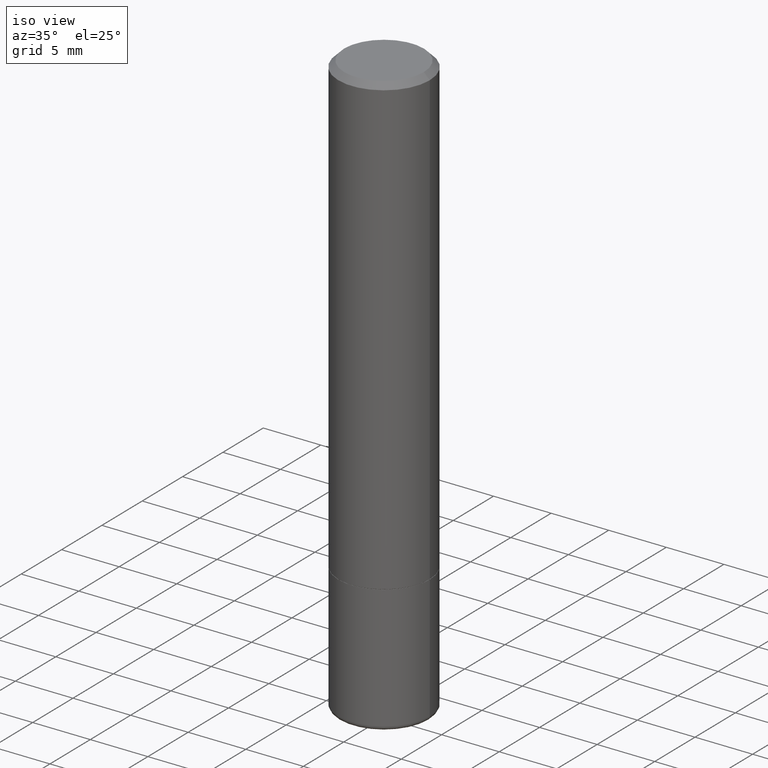
[diagram: clean part render]
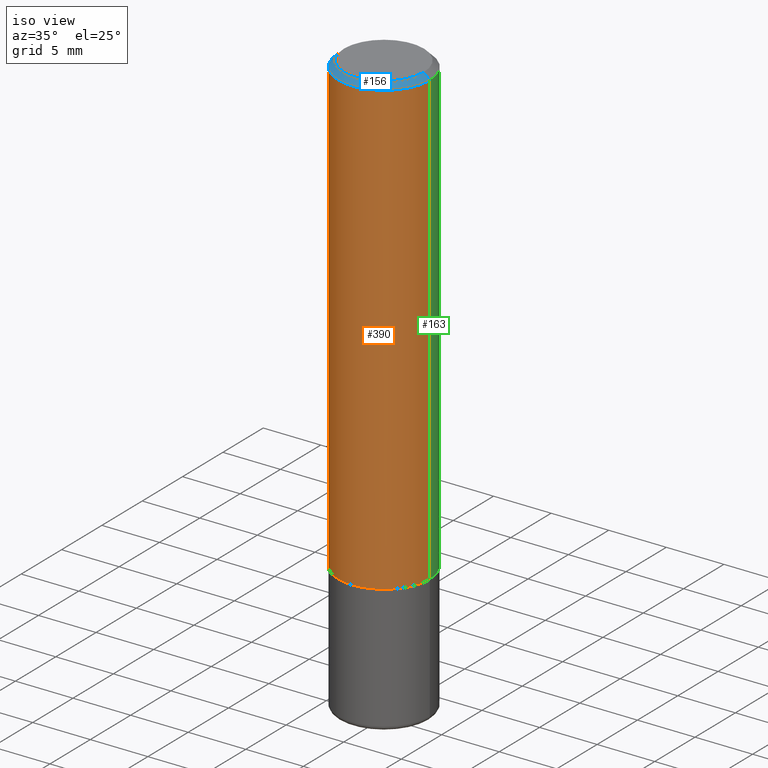
[diagram: same view with three faces highlighted in distinct colors, each labeled with its STEP entity id]
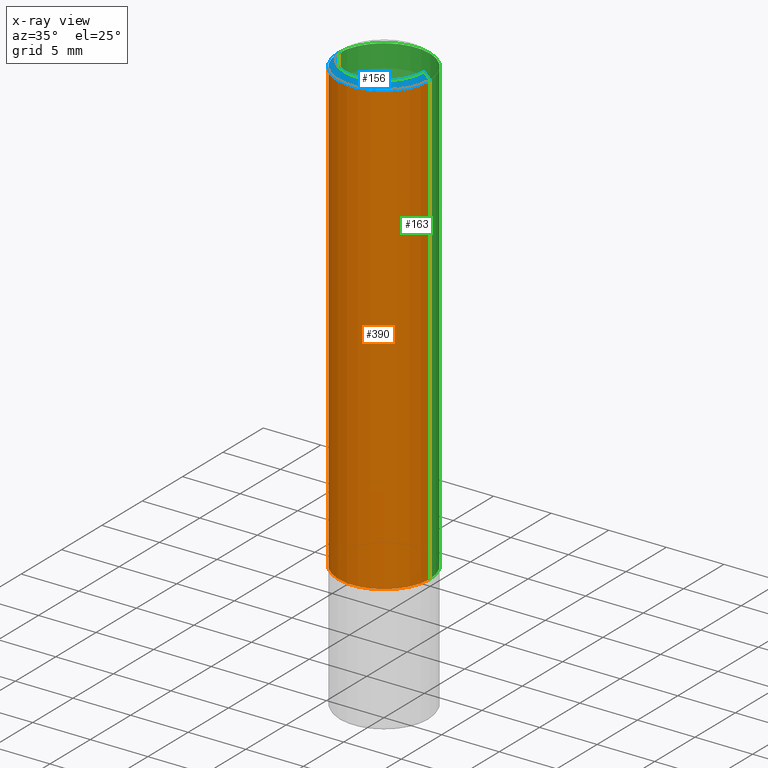
[diagram: x-ray of the same camera — body ghosted, the three highlighted faces saturated]
A machine part, iso view with three faces highlighted in distinct colors.
The next image is the same camera in x-ray (body ghosted, the three faces saturated) — at least one of them is partly hidden behind the body in this view.
Their STEP definitions:

[orange] entity #390 — the highlighted cylindrical surface (partial cylindrical patch) has radius 3.9687 mm, axis along (-0, 0, 1).
#5 = CYLINDRICAL_SURFACE ( 'NONE', #397, 0.1562499999999999167 ) ;
#18 = CIRCLE ( 'NONE', #272, 0.1562499999999998057 ) ;
#41 = DIRECTION ( 'NONE',  ( 1.000000000000000000, -6.982962677686265133E-15, 4.876176775795935232E-29 ) ) ;
#67 = EDGE_CURVE ( 'NONE', #201, #117, #386, .T. ) ;
#79 = VECTOR ( 'NONE', #441, 39.37007874015748143 ) ;
#102 = VECTOR ( 'NONE', #209, 39.37007874015748143 ) ;
#117 = VERTEX_POINT ( 'NONE', #331 ) ;
#154 = CARTESIAN_POINT ( 'NONE',  ( -0.1562499999999998057, 1.021258291611614692E-15, -0.02000000000000002470 ) ) ;
#165 = AXIS2_PLACEMENT_3D ( 'NONE', #314, #310, #277 ) ;
#167 = LINE ( 'NONE', #439, #102 ) ;
#175 = CARTESIAN_POINT ( 'NONE',  ( -0.1562500000000000000, -1.650665844065059428E-15, -1.561499999999999888 ) ) ;
#182 = ORIENTED_EDGE ( 'NONE', *, *, #417, .F. ) ;
#184 = CARTESIAN_POINT ( 'NONE',  ( 4.890937612370279289E-31, -6.982962677686299005E-17, -0.02000000000000002470 ) ) ;
#185 = ORIENTED_EDGE ( 'NONE', *, *, #67, .T. ) ;
#196 = EDGE_CURVE ( 'NONE', #117, #428, #167, .T. ) ;
#201 = VERTEX_POINT ( 'NONE', #175 ) ;
#209 = DIRECTION ( 'NONE',  ( -2.445468806185136877E-29, 3.491481338843145188E-15, 1.000000000000000000 ) ) ;
#245 = FACE_OUTER_BOUND ( 'NONE', #383, .T. ) ;
#268 = EDGE_CURVE ( 'NONE', #201, #363, #344, .T. ) ;
#272 = AXIS2_PLACEMENT_3D ( 'NONE', #184, #319, #287 ) ;
#276 = ORIENTED_EDGE ( 'NONE', *, *, #196, .T. ) ;
#277 = DIRECTION ( 'NONE',  ( 1.000000000000000000, -6.982962677686269077E-15, 0.000000000000000000 ) ) ;
#283 = CARTESIAN_POINT ( 'NONE',  ( 0.000000000000000000, 0.000000000000000000, 0.000000000000000000 ) ) ;
#287 = DIRECTION ( 'NONE',  ( 1.000000000000000000, -6.982962677686266711E-15, 0.000000000000000000 ) ) ;
#310 = DIRECTION ( 'NONE',  ( -2.445468806185136597E-29, 3.491481338843145583E-15, 1.000000000000000000 ) ) ;
#314 = CARTESIAN_POINT ( 'NONE',  ( 3.818599540858090890E-29, -5.451948110603571793E-15, -1.561499999999999888 ) ) ;
#319 = DIRECTION ( 'NONE',  ( -2.445468806185136597E-29, 3.491481338843145583E-15, 1.000000000000000000 ) ) ;
#331 = CARTESIAN_POINT ( 'NONE',  ( 0.1562500000000000000, -6.543036028992050967E-15, -1.561499999999999888 ) ) ;
#344 = LINE ( 'NONE', #389, #79 ) ;
#355 = ORIENTED_EDGE ( 'NONE', *, *, #268, .F. ) ;
#363 = VERTEX_POINT ( 'NONE', #154 ) ;
#365 = CARTESIAN_POINT ( 'NONE',  ( 0.1562499999999998057, -1.141782438928663330E-15, -0.02000000000000002470 ) ) ;
#383 = EDGE_LOOP ( 'NONE', ( #355, #185, #276, #182 ) ) ;
#386 = CIRCLE ( 'NONE', #165, 0.1562500000000000000 ) ;
#389 = CARTESIAN_POINT ( 'NONE',  ( -0.1562499999999999167, 1.110223024625155949E-15, -7.685836078523285555E-30 ) ) ;
#390 = ADVANCED_FACE ( 'NONE', ( #245 ), #5, .T. ) ;
#396 = DIRECTION ( 'NONE',  ( -2.445468806185136597E-29, 3.491481338843145583E-15, 1.000000000000000000 ) ) ;
#397 = AXIS2_PLACEMENT_3D ( 'NONE', #283, #396, #41 ) ;
#417 = EDGE_CURVE ( 'NONE', #363, #428, #18, .T. ) ;
#428 = VERTEX_POINT ( 'NONE', #365 ) ;
#439 = CARTESIAN_POINT ( 'NONE',  ( 0.1562499999999999167, -1.091087918388478385E-15, 7.619026212181144772E-30 ) ) ;
#441 = DIRECTION ( 'NONE',  ( -2.445468806185136877E-29, 3.491481338843145188E-15, 1.000000000000000000 ) ) ;

[blue] entity #156 — the highlighted conical surface has half-angle 45 deg.
#18 = CIRCLE ( 'NONE', #272, 0.1562499999999998057 ) ;
#34 = ORIENTED_EDGE ( 'NONE', *, *, #54, .T. ) ;
#42 = AXIS2_PLACEMENT_3D ( 'NONE', #231, #292, #53 ) ;
#53 = DIRECTION ( 'NONE',  ( 1.000000000000000000, -6.982962677686266711E-15, 4.876176775795935232E-29 ) ) ;
#54 = EDGE_CURVE ( 'NONE', #414, #363, #73, .T. ) ;
#73 = LINE ( 'NONE', #173, #127 ) ;
#74 = DIRECTION ( 'NONE',  ( 2.445468806185136597E-29, -3.491481338843145583E-15, -1.000000000000000000 ) ) ;
#93 = EDGE_LOOP ( 'NONE', ( #108, #261, #34, #357 ) ) ;
#107 = DIRECTION ( 'NONE',  ( -1.000000000000000000, 6.982962677686266711E-15, 0.000000000000000000 ) ) ;
#108 = ORIENTED_EDGE ( 'NONE', *, *, #225, .F. ) ;
#113 = DIRECTION ( 'NONE',  ( -0.7071067811865472397, 2.468850131082253905E-15, -0.7071067811865477948 ) ) ;
#127 = VECTOR ( 'NONE', #113, 39.37007874015748143 ) ;
#131 = LINE ( 'NONE', #437, #378 ) ;
#135 = CONICAL_SURFACE ( 'NONE', #387, 0.1562499999999998057, 0.7853981633974479459 ) ;
#145 = EDGE_CURVE ( 'NONE', #414, #352, #281, .T. ) ;
#154 = CARTESIAN_POINT ( 'NONE',  ( -0.1562499999999998057, 1.021258291611614692E-15, -0.02000000000000002470 ) ) ;
#156 = ADVANCED_FACE ( 'NONE', ( #170 ), #135, .T. ) ;
#170 = FACE_OUTER_BOUND ( 'NONE', #93, .T. ) ;
#173 = CARTESIAN_POINT ( 'NONE',  ( -0.1562499999999998057, 1.021258291611614692E-15, -0.02000000000000002470 ) ) ;
#184 = CARTESIAN_POINT ( 'NONE',  ( 4.890937612370279289E-31, -6.982962677686299005E-17, -0.02000000000000002470 ) ) ;
#225 = EDGE_CURVE ( 'NONE', #352, #428, #131, .T. ) ;
#231 = CARTESIAN_POINT ( 'NONE',  ( 0.000000000000000000, 0.000000000000000000, 0.000000000000000000 ) ) ;
#261 = ORIENTED_EDGE ( 'NONE', *, *, #145, .F. ) ;
#272 = AXIS2_PLACEMENT_3D ( 'NONE', #184, #319, #287 ) ;
#281 = CIRCLE ( 'NONE', #42, 0.1362499999999997879 ) ;
#287 = DIRECTION ( 'NONE',  ( 1.000000000000000000, -6.982962677686266711E-15, 0.000000000000000000 ) ) ;
#292 = DIRECTION ( 'NONE',  ( -2.445468806185136597E-29, 3.491481338843145583E-15, 1.000000000000000000 ) ) ;
#315 = CARTESIAN_POINT ( 'NONE',  ( 0.1362499999999997879, -1.038262645562516547E-15, 6.957025900226685266E-30 ) ) ;
#318 = CARTESIAN_POINT ( 'NONE',  ( -0.1362499999999997879, 9.863434782231836346E-16, -6.775751096333128673E-30 ) ) ;
#319 = DIRECTION ( 'NONE',  ( -2.445468806185136597E-29, 3.491481338843145583E-15, 1.000000000000000000 ) ) ;
#352 = VERTEX_POINT ( 'NONE', #315 ) ;
#356 = DIRECTION ( 'NONE',  ( 0.7071067811865472397, -7.319954787623254468E-15, -0.7071067811865477948 ) ) ;
#357 = ORIENTED_EDGE ( 'NONE', *, *, #417, .T. ) ;
#363 = VERTEX_POINT ( 'NONE', #154 ) ;
#365 = CARTESIAN_POINT ( 'NONE',  ( 0.1562499999999998057, -1.141782438928663330E-15, -0.02000000000000002470 ) ) ;
#376 = CARTESIAN_POINT ( 'NONE',  ( 4.890937612370279289E-31, -6.982962677686299005E-17, -0.02000000000000002470 ) ) ;
#378 = VECTOR ( 'NONE', #356, 39.37007874015748143 ) ;
#387 = AXIS2_PLACEMENT_3D ( 'NONE', #376, #74, #107 ) ;
#414 = VERTEX_POINT ( 'NONE', #318 ) ;
#417 = EDGE_CURVE ( 'NONE', #363, #428, #18, .T. ) ;
#428 = VERTEX_POINT ( 'NONE', #365 ) ;
#437 = CARTESIAN_POINT ( 'NONE',  ( 0.1562499999999998057, -1.141782438928663330E-15, -0.02000000000000002470 ) ) ;

[green] entity #163 — the highlighted cylindrical surface (partial cylindrical patch) has radius 3.9687 mm, axis along (-0, 0, 1).
#2 = ORIENTED_EDGE ( 'NONE', *, *, #76, .F. ) ;
#7 = DIRECTION ( 'NONE',  ( 1.000000000000000000, -6.982962677686269077E-15, 0.000000000000000000 ) ) ;
#23 = AXIS2_PLACEMENT_3D ( 'NONE', #215, #37, #176 ) ;
#37 = DIRECTION ( 'NONE',  ( -2.445468806185136597E-29, 3.491481338843145583E-15, 1.000000000000000000 ) ) ;
#47 = EDGE_CURVE ( 'NONE', #117, #201, #264, .T. ) ;
#61 = CIRCLE ( 'NONE', #23, 0.1562499999999998057 ) ;
#76 = EDGE_CURVE ( 'NONE', #428, #363, #61, .T. ) ;
#79 = VECTOR ( 'NONE', #441, 39.37007874015748143 ) ;
#102 = VECTOR ( 'NONE', #209, 39.37007874015748143 ) ;
#109 = CARTESIAN_POINT ( 'NONE',  ( 3.818599540858090890E-29, -5.451948110603571793E-15, -1.561499999999999888 ) ) ;
#117 = VERTEX_POINT ( 'NONE', #331 ) ;
#134 = EDGE_LOOP ( 'NONE', ( #371, #351, #2, #309 ) ) ;
#154 = CARTESIAN_POINT ( 'NONE',  ( -0.1562499999999998057, 1.021258291611614692E-15, -0.02000000000000002470 ) ) ;
#163 = ADVANCED_FACE ( 'NONE', ( #410 ), #308, .T. ) ;
#167 = LINE ( 'NONE', #439, #102 ) ;
#171 = AXIS2_PLACEMENT_3D ( 'NONE', #347, #269, #172 ) ;
#172 = DIRECTION ( 'NONE',  ( 1.000000000000000000, -6.982962677686265133E-15, 4.876176775795935232E-29 ) ) ;
#175 = CARTESIAN_POINT ( 'NONE',  ( -0.1562500000000000000, -1.650665844065059428E-15, -1.561499999999999888 ) ) ;
#176 = DIRECTION ( 'NONE',  ( 1.000000000000000000, -6.982962677686266711E-15, 0.000000000000000000 ) ) ;
#178 = DIRECTION ( 'NONE',  ( -2.445468806185136597E-29, 3.491481338843145583E-15, 1.000000000000000000 ) ) ;
#196 = EDGE_CURVE ( 'NONE', #117, #428, #167, .T. ) ;
#201 = VERTEX_POINT ( 'NONE', #175 ) ;
#209 = DIRECTION ( 'NONE',  ( -2.445468806185136877E-29, 3.491481338843145188E-15, 1.000000000000000000 ) ) ;
#215 = CARTESIAN_POINT ( 'NONE',  ( 4.890937612370279289E-31, -6.982962677686299005E-17, -0.02000000000000002470 ) ) ;
#264 = CIRCLE ( 'NONE', #324, 0.1562500000000000000 ) ;
#268 = EDGE_CURVE ( 'NONE', #201, #363, #344, .T. ) ;
#269 = DIRECTION ( 'NONE',  ( -2.445468806185136597E-29, 3.491481338843145583E-15, 1.000000000000000000 ) ) ;
#308 = CYLINDRICAL_SURFACE ( 'NONE', #171, 0.1562499999999999167 ) ;
#309 = ORIENTED_EDGE ( 'NONE', *, *, #196, .F. ) ;
#324 = AXIS2_PLACEMENT_3D ( 'NONE', #109, #178, #7 ) ;
#331 = CARTESIAN_POINT ( 'NONE',  ( 0.1562500000000000000, -6.543036028992050967E-15, -1.561499999999999888 ) ) ;
#344 = LINE ( 'NONE', #389, #79 ) ;
#347 = CARTESIAN_POINT ( 'NONE',  ( 0.000000000000000000, 0.000000000000000000, 0.000000000000000000 ) ) ;
#351 = ORIENTED_EDGE ( 'NONE', *, *, #268, .T. ) ;
#363 = VERTEX_POINT ( 'NONE', #154 ) ;
#365 = CARTESIAN_POINT ( 'NONE',  ( 0.1562499999999998057, -1.141782438928663330E-15, -0.02000000000000002470 ) ) ;
#371 = ORIENTED_EDGE ( 'NONE', *, *, #47, .T. ) ;
#389 = CARTESIAN_POINT ( 'NONE',  ( -0.1562499999999999167, 1.110223024625155949E-15, -7.685836078523285555E-30 ) ) ;
#410 = FACE_OUTER_BOUND ( 'NONE', #134, .T. ) ;
#428 = VERTEX_POINT ( 'NONE', #365 ) ;
#439 = CARTESIAN_POINT ( 'NONE',  ( 0.1562499999999999167, -1.091087918388478385E-15, 7.619026212181144772E-30 ) ) ;
#441 = DIRECTION ( 'NONE',  ( -2.445468806185136877E-29, 3.491481338843145188E-15, 1.000000000000000000 ) ) ;